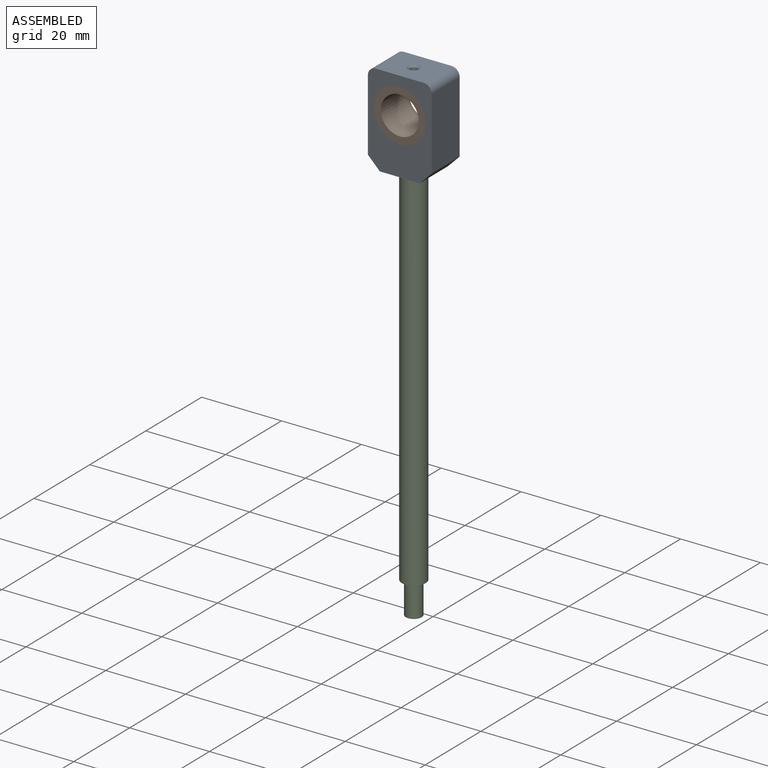
[diagram: assembled view]
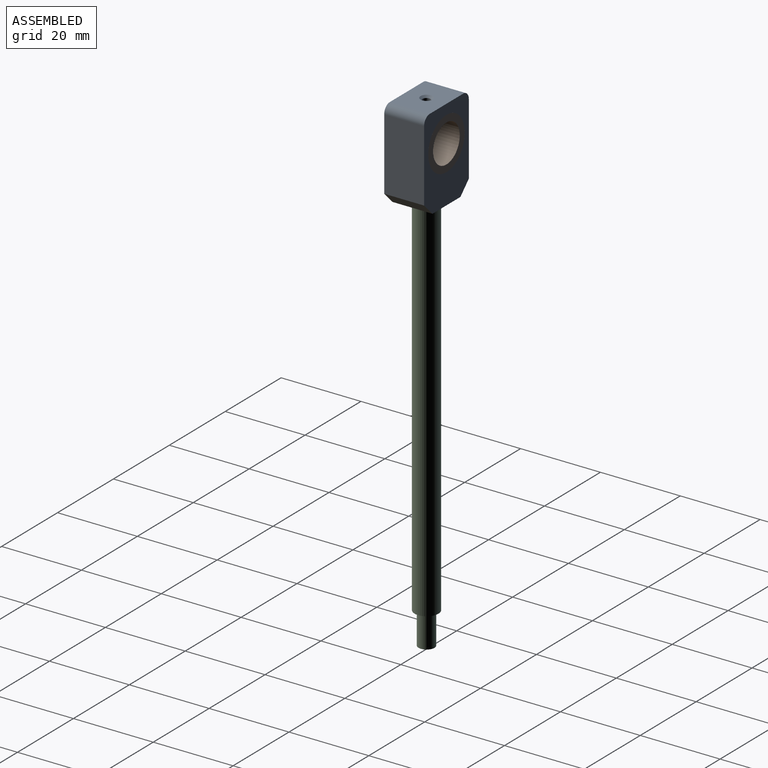
[diagram: assembled view, second angle]
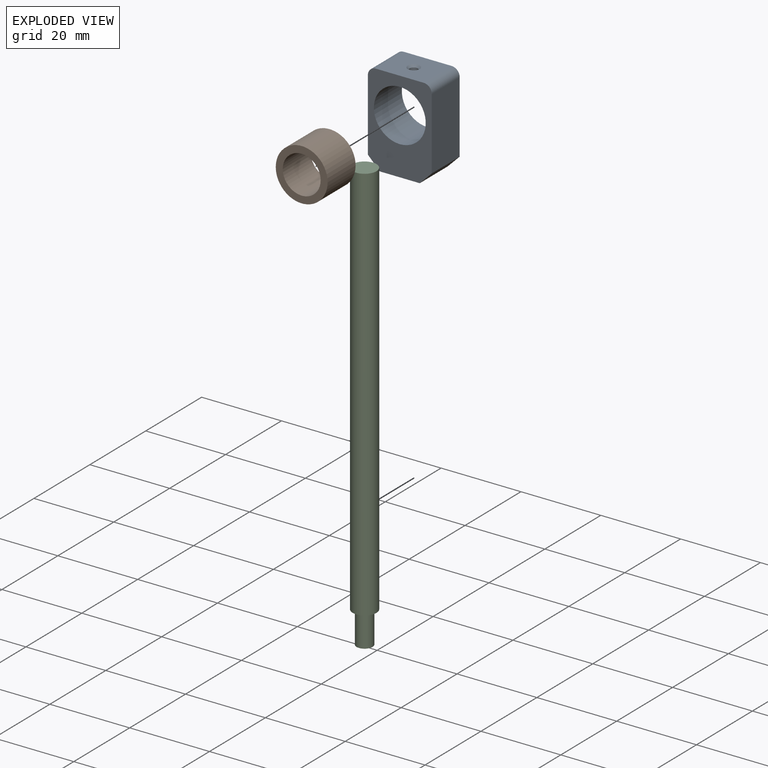
[diagram: exploded view]
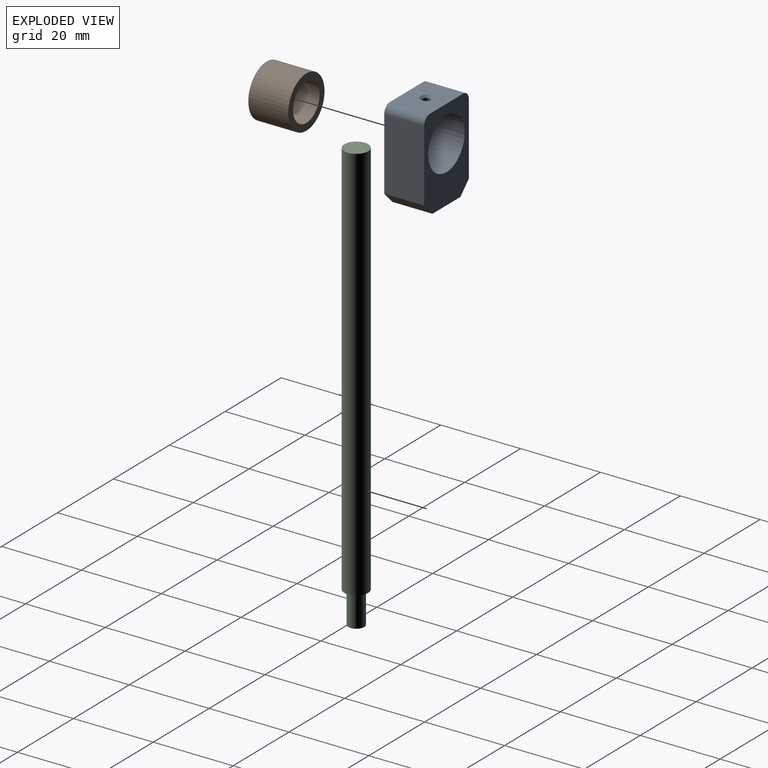
[diagram: exploded view, second angle]
ASSEMBLY  parts=3 mates=2
PART A: 15 faces, bbox 16x10x23 mm
  f0: plane 18x10mm, normal (-1,0,0), area 180mm2, adj f1,f8,f9,f10
  f1: plane 10x3mm, normal (-0.71,0,-0.71), area 42.4mm2, adj f0,f2,f9,f10
  f2: plane 10x10mm, normal (0,0,-1), area 71.7mm2, adj f1,f3,f9,f10,f12
  f3: plane 10x3mm, normal (0.71,0,-0.71), area 42.4mm2, adj f2,f4,f9,f10
  f4: plane 18x10mm, normal (1,0,0), area 180mm2, adj f3,f5,f9,f10
  f5: cylinder r=2mm len=10mm, axis (0,1,0), area 31.4mm2, adj f4,f6,f9,f10
  f6: plane 12x10mm, normal (0,0,1), area 112.9mm2, adj f5,f8,f9,f10,f14
  f7: cylinder r=6.5mm len=13mm, axis (0,1,0), area 405.3mm2, adj f9,f10,f11
  f8: cylinder r=2mm len=10mm, axis (0,1,0), area 31.4mm2, adj f0,f6,f9,f10
  f9: plane 23x16mm, normal (0,-1,0), area 224.6mm2, adj f0,f1,f2,f3,f4,f5,f6,f7
  f10: plane 23x16mm, normal (0,1,0), area 224.6mm2, adj f0,f1,f2,f3,f4,f5,f6,f7
  f11: cylinder r=1mm len=2.08mm, axis (0,0,1), area 12.8mm2, adj f7,f14
  f12: cylinder r=3mm len=7mm, axis (0,0,-1), area 131.9mm2, adj f2,f13
  f13: plane 6x6mm, normal (0,0,-1), area 28.3mm2, adj f12
  f14: cone r=1mm half-angle=45deg, axis (0,0,1), area 5.6mm2, adj f6,f11
PART B: 4 faces, bbox 13x13x10 mm
  f0: cylinder r=4.75mm len=10mm, axis (0,0,-1), area 298.5mm2, adj f2,f3
  f1: cylinder r=6.5mm len=13mm, axis (0,0,-1), area 408.4mm2, adj f2,f3
  f2: plane 13x13mm, normal (0,0,1), area 61.9mm2, adj f0,f1
  f3: plane 13x13mm, normal (0,0,-1), area 61.9mm2, adj f0,f1
PART C: 5 faces, bbox 6x6x108 mm
  f0: cylinder r=2mm len=8mm, axis (0,0,-1), area 100.5mm2, adj f1,f4
  f1: plane 4x4mm, normal (0,0,1), area 12.6mm2, adj f0
  f2: cylinder r=3mm len=100mm, axis (0,0,1), area 1885mm2, adj f3,f4
  f3: plane 6x6mm, normal (0,0,-1), area 28.3mm2, adj f2
  f4: plane 6x6mm, normal (0,0,1), area 15.7mm2, adj f0,f2
PLACE A t=(24.52,100.23,79.94)mm
PLACE B rot(axis=(-1,0,0),90deg) t=(74.11,90.23,145.63)mm
PLACE C rot(axis=(1,0,0),180deg) t=(81.48,32.07,-13.06)mm
MATE fastened C.f0 <-> A.f11  axis (0,0,-1) through (32.52,95.23,86.94)mm
MATE fastened B.f0 <-> A.f7  axis (0,1,0) through (32.52,100.23,93.94)mm
